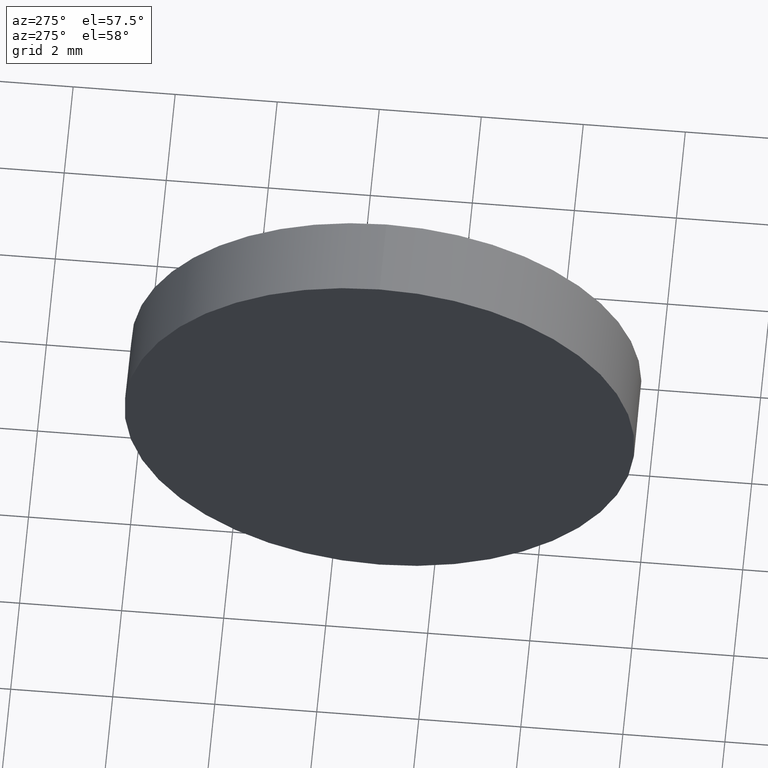
[diagram: clean part render]
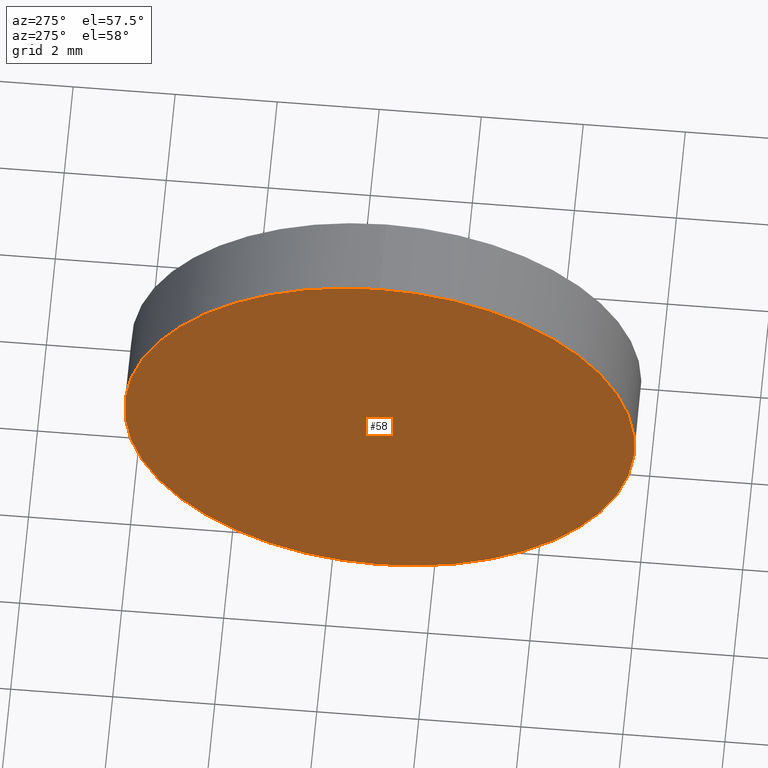
[diagram: same view with one face highlighted and labeled with its STEP entity id]
A machine part, auxiliary view. The second image highlights one B-rep face of the part: STEP entity #58.
In plain terms, the highlighted planar face has unit normal (1, 0, 0).
Its self-contained STEP definition (entity closure, byte-faithful):
#3 = DIRECTION ( 'NONE',  ( 0.0000000000000000000, 0.0000000000000000000, -1.000000000000000000 ) ) ;
#5 = FACE_OUTER_BOUND ( 'NONE', #73, .T. ) ;
#17 = DIRECTION ( 'NONE',  ( 1.000000000000000000, 0.0000000000000000000, 0.0000000000000000000 ) ) ;
#45 = PLANE ( 'NONE',  #122 ) ;
#53 = VERTEX_POINT ( 'NONE', #66 ) ;
#58 = ADVANCED_FACE ( 'NONE', ( #5 ), #45, .F. ) ;
#61 = DIRECTION ( 'NONE',  ( -1.000000000000000000, -0.0000000000000000000, -0.0000000000000000000 ) ) ;
#66 = CARTESIAN_POINT ( 'NONE',  ( 463.3655895717470200, 129.0640257703732300, -5.000000000000004400 ) ) ;
#69 = CARTESIAN_POINT ( 'NONE',  ( 463.3655895717470200, 129.0640257703732300, 5.000000000000004400 ) ) ;
#73 = EDGE_LOOP ( 'NONE', ( #174, #82 ) ) ;
#82 = ORIENTED_EDGE ( 'NONE', *, *, #159, .T. ) ;
#102 = DIRECTION ( 'NONE',  ( 0.0000000000000000000, 0.0000000000000000000, 1.000000000000000000 ) ) ;
#103 = CARTESIAN_POINT ( 'NONE',  ( 463.3655895717470200, 129.0640257703732300, 0.0000000000000000000 ) ) ;
#106 = VERTEX_POINT ( 'NONE', #69 ) ;
#111 = DIRECTION ( 'NONE',  ( 0.0000000000000000000, 0.0000000000000000000, 1.000000000000000000 ) ) ;
#113 = EDGE_CURVE ( 'NONE', #106, #53, #115, .T. ) ;
#115 = CIRCLE ( 'NONE', #163, 5.000000000000004400 ) ;
#120 = CARTESIAN_POINT ( 'NONE',  ( 463.3655895717470200, 129.0640257703732300, 0.0000000000000000000 ) ) ;
#122 = AXIS2_PLACEMENT_3D ( 'NONE', #124, #17, #3 ) ;
#124 = CARTESIAN_POINT ( 'NONE',  ( 463.3655895717470200, 129.0640257703732300, 0.0000000000000000000 ) ) ;
#135 = AXIS2_PLACEMENT_3D ( 'NONE', #103, #61, #102 ) ;
#147 = CIRCLE ( 'NONE', #135, 5.000000000000004400 ) ;
#159 = EDGE_CURVE ( 'NONE', #53, #106, #147, .T. ) ;
#163 = AXIS2_PLACEMENT_3D ( 'NONE', #120, #169, #111 ) ;
#169 = DIRECTION ( 'NONE',  ( -1.000000000000000000, -0.0000000000000000000, -0.0000000000000000000 ) ) ;
#174 = ORIENTED_EDGE ( 'NONE', *, *, #113, .T. ) ;